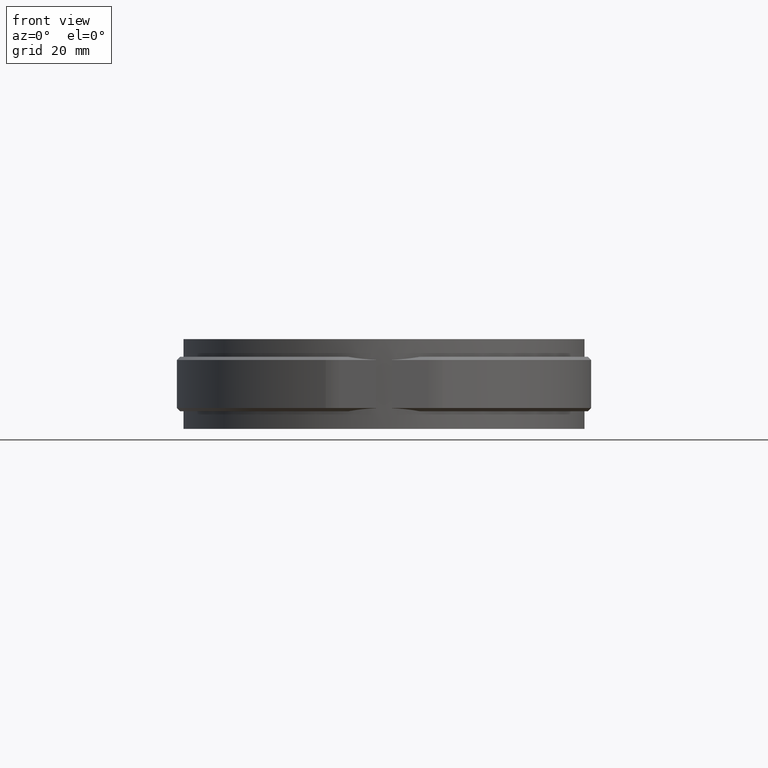
[diagram: clean part render]
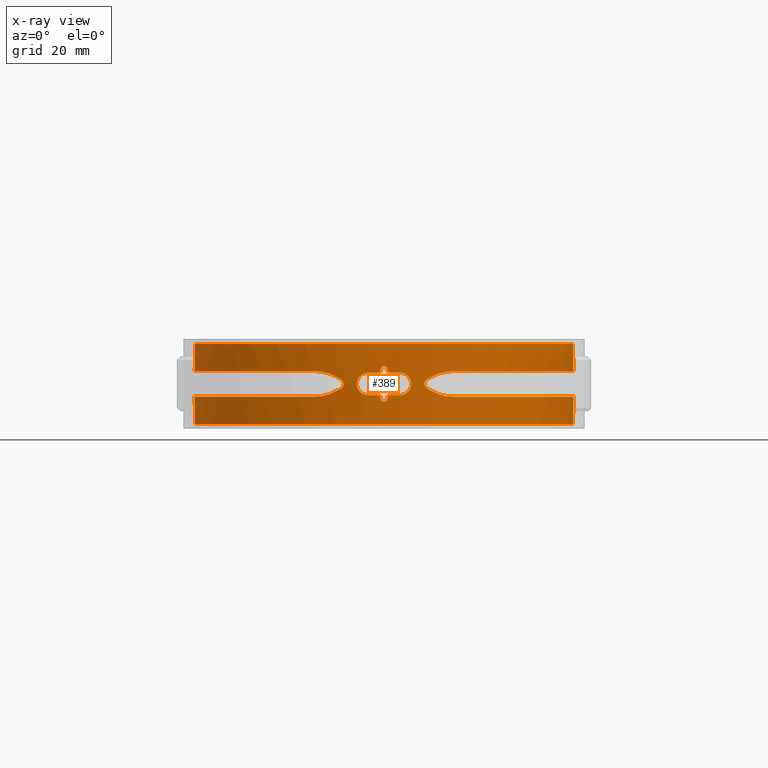
[diagram: x-ray — body ghosted, one internal face saturated and labeled with its STEP entity id]
A machine part, front view, then the same camera in x-ray: the body is ghosted and one INTERNAL B-rep face — a face not visible from any outside direction — is saturated and labeled: STEP entity #389.
In plain terms, the highlighted cylindrical surface (partial cylindrical patch) has radius 59.15 mm, axis along (0, 0, 1).
Its self-contained STEP definition (entity closure, byte-faithful):
#389 = ADVANCED_FACE( '', ( #749, #750 ), #751, .F. );
#749 = FACE_OUTER_BOUND( '', #1618, .T. );
#750 = FACE_BOUND( '', #1619, .T. );
#751 = CYLINDRICAL_SURFACE( '', #1620, 59.1500000000000 );
#1618 = EDGE_LOOP( '', ( #3155, #3156, #3157, #3158, #3159, #3160, #3161, #3162, #3163, #3164, #3165, #3166, #3167, #3168, #3169, #3170 ) );
#1619 = EDGE_LOOP( '', ( #3171, #3172, #3173, #3174, #3175, #3176, #3177, #3178, #3179, #3180, #3181, #3182, #3183, #3184, #3185, #3186 ) );
#1620 = AXIS2_PLACEMENT_3D( '', #3187, #3188, #3189 );
#3155 = ORIENTED_EDGE( '', *, *, #6119, .F. );
#3156 = ORIENTED_EDGE( '', *, *, #6120, .F. );
#3157 = ORIENTED_EDGE( '', *, *, #6090, .T. );
#3158 = ORIENTED_EDGE( '', *, *, #6084, .T. );
#3159 = ORIENTED_EDGE( '', *, *, #6121, .T. );
#3160 = ORIENTED_EDGE( '', *, *, #6122, .T. );
#3161 = ORIENTED_EDGE( '', *, *, #6113, .T. );
#3162 = ORIENTED_EDGE( '', *, *, #6123, .T. );
#3163 = ORIENTED_EDGE( '', *, *, #6124, .T. );
#3164 = ORIENTED_EDGE( '', *, *, #6082, .T. );
#3165 = ORIENTED_EDGE( '', *, *, #6033, .F. );
#3166 = ORIENTED_EDGE( '', *, *, #6125, .F. );
#3167 = ORIENTED_EDGE( '', *, *, #6126, .F. );
#3168 = ORIENTED_EDGE( '', *, *, #6078, .F. );
#3169 = ORIENTED_EDGE( '', *, *, #6099, .F. );
#3170 = ORIENTED_EDGE( '', *, *, #6076, .F. );
#3171 = ORIENTED_EDGE( '', *, *, #6127, .F. );
#3172 = ORIENTED_EDGE( '', *, *, #6128, .F. );
#3173 = ORIENTED_EDGE( '', *, *, #6129, .F. );
#3174 = ORIENTED_EDGE( '', *, *, #6107, .F. );
#3175 = ORIENTED_EDGE( '', *, *, #6110, .F. );
#3176 = ORIENTED_EDGE( '', *, *, #6117, .F. );
#3177 = ORIENTED_EDGE( '', *, *, #6130, .F. );
#3178 = ORIENTED_EDGE( '', *, *, #6114, .F. );
#3179 = ORIENTED_EDGE( '', *, *, #6131, .F. );
#3180 = ORIENTED_EDGE( '', *, *, #6132, .F. );
#3181 = ORIENTED_EDGE( '', *, *, #6133, .F. );
#3182 = ORIENTED_EDGE( '', *, *, #6134, .F. );
#3183 = ORIENTED_EDGE( '', *, *, #6135, .F. );
#3184 = ORIENTED_EDGE( '', *, *, #6136, .F. );
#3185 = ORIENTED_EDGE( '', *, *, #6094, .F. );
#3186 = ORIENTED_EDGE( '', *, *, #6103, .F. );
#3187 = CARTESIAN_POINT( '', ( -3.46944695195361E-015, 0.000000000000000, -12.5000000000000 ) );
#3188 = DIRECTION( '', ( 0.000000000000000, 0.000000000000000, 1.00000000000000 ) );
#3189 = DIRECTION( '', ( -1.00000000000000, 6.16283340149655E-017, 0.000000000000000 ) );
#6033 = EDGE_CURVE( '', #6943, #6945, #6946, .T. );
#6076 = EDGE_CURVE( '', #7023, #7026, #7027, .T. );
#6078 = EDGE_CURVE( '', #7028, #7024, #7030, .T. );
#6082 = EDGE_CURVE( '', #7036, #6945, #7037, .T. );
#6084 = EDGE_CURVE( '', #7040, #7038, #7041, .T. );
#6090 = EDGE_CURVE( '', #7049, #7040, #7050, .T. );
#6094 = EDGE_CURVE( '', #7055, #7056, #7057, .T. );
#6099 = EDGE_CURVE( '', #7026, #7028, #7063, .T. );
#6103 = EDGE_CURVE( '', #7068, #7055, #7069, .T. );
#6107 = EDGE_CURVE( '', #7074, #7075, #7076, .T. );
#6110 = EDGE_CURVE( '', #7079, #7074, #7080, .T. );
#6113 = EDGE_CURVE( '', #7082, #7083, #7085, .T. );
#6114 = EDGE_CURVE( '', #7086, #7087, #7088, .F. );
#6117 = EDGE_CURVE( '', #7091, #7079, #7092, .T. );
#6119 = EDGE_CURVE( '', #7094, #7023, #7095, .T. );
#6120 = EDGE_CURVE( '', #7049, #7094, #7096, .T. );
#6121 = EDGE_CURVE( '', #7038, #7097, #7098, .T. );
#6122 = EDGE_CURVE( '', #7097, #7082, #7099, .T. );
#6123 = EDGE_CURVE( '', #7083, #7100, #7101, .T. );
#6124 = EDGE_CURVE( '', #7100, #7036, #7102, .T. );
#6125 = EDGE_CURVE( '', #7103, #6943, #7104, .T. );
#6126 = EDGE_CURVE( '', #7024, #7103, #7105, .T. );
#6127 = EDGE_CURVE( '', #7106, #7068, #7107, .T. );
#6128 = EDGE_CURVE( '', #7108, #7106, #7109, .T. );
#6129 = EDGE_CURVE( '', #7075, #7108, #7110, .T. );
#6130 = EDGE_CURVE( '', #7087, #7091, #7111, .T. );
#6131 = EDGE_CURVE( '', #7112, #7086, #7113, .T. );
#6132 = EDGE_CURVE( '', #7114, #7112, #7115, .T. );
#6133 = EDGE_CURVE( '', #7116, #7114, #7117, .T. );
#6134 = EDGE_CURVE( '', #7118, #7116, #7119, .T. );
#6135 = EDGE_CURVE( '', #7120, #7118, #7121, .T. );
#6136 = EDGE_CURVE( '', #7056, #7120, #7122, .T. );
#6943 = VERTEX_POINT( '', #8446 );
#6945 = VERTEX_POINT( '', #8448 );
#6946 = CIRCLE( '', #8449, 59.1500000000000 );
#7023 = VERTEX_POINT( '', #8974 );
#7024 = VERTEX_POINT( '', #8975 );
#7026 = VERTEX_POINT( '', #8990 );
#7027 = B_SPLINE_CURVE_WITH_KNOTS( '', 3, ( #8991, #8992, #8993, #8994, #8995, #8996, #8997, #8998 ), .UNSPECIFIED., .F., .F., ( 4, 2, 2, 4 ), ( 5.93113093266774E-017, 0.00237748280261318, 0.00356622420391974, 0.00475496560522630 ), .UNSPECIFIED. );
#7028 = VERTEX_POINT( '', #8999 );
#7030 = B_SPLINE_CURVE_WITH_KNOTS( '', 3, ( #9010, #9011, #9012, #9013, #9014, #9015 ), .UNSPECIFIED., .F., .F., ( 4, 2, 4 ), ( 1.23390560447534E-015, 0.00237200723680634, 0.00474401447361144 ), .UNSPECIFIED. );
#7036 = VERTEX_POINT( '', #9037 );
#7037 = LINE( '', #9038, #9039 );
#7038 = VERTEX_POINT( '', #9040 );
#7040 = VERTEX_POINT( '', #9075 );
#7041 = LINE( '', #9076, #9077 );
#7049 = VERTEX_POINT( '', #9102 );
#7050 = CIRCLE( '', #9103, 59.1500000000000 );
#7055 = VERTEX_POINT( '', #9110 );
#7056 = VERTEX_POINT( '', #9111 );
#7057 = ELLIPSE( '', #9112, 269.461386027890, 59.1500000000000 );
#7063 = B_SPLINE_CURVE_WITH_KNOTS( '', 3, ( #9142, #9143, #9144, #9145, #9146, #9147, #9148, #9149, #9150, #9151, #9152, #9153, #9154, #9155, #9156, #9157, #9158, #9159, #9160, #9161, #9162, #9163, #9164, #9165, #9166, #9167, #9168, #9169, #9170, #9171, #9172, #9173 ), .UNSPECIFIED., .F., .F., ( 4, 2, 2, 2, 2, 2, 2, 2, 2, 2, 2, 2, 2, 2, 2, 4 ), ( 8.67361737988404E-019, 0.00156076088553258, 0.00312152177106516, 0.00390190221383146, 0.00468228265659775, 0.00546266309936404, 0.00585285332074718, 0.00624304354213033, 0.00663323376351348, 0.00702342398489662, 0.00741361420627977, 0.00780380442766291, 0.00858418487042921, 0.00936456531319550, 0.0109253261987281, 0.0124860870842607 ), .UNSPECIFIED. );
#7068 = VERTEX_POINT( '', #9183 );
#7069 = B_SPLINE_CURVE_WITH_KNOTS( '', 3, ( #9184, #9185, #9186, #9187, #9188, #9189 ), .UNSPECIFIED., .F., .F., ( 4, 2, 4 ), ( 1.30688418460503E-016, 0.000335830371839508, 0.000671660743678884 ), .UNSPECIFIED. );
#7074 = VERTEX_POINT( '', #9195 );
#7075 = VERTEX_POINT( '', #9196 );
#7076 = B_SPLINE_CURVE_WITH_KNOTS( '', 3, ( #9197, #9198, #9199, #9200, #9201, #9202 ), .UNSPECIFIED., .F., .F., ( 4, 2, 4 ), ( 0.000000000000000, 0.000335831563740138, 0.000671663127480277 ), .UNSPECIFIED. );
#7079 = VERTEX_POINT( '', #9207 );
#7080 = ELLIPSE( '', #9208, 269.461248569472, 59.1500000000000 );
#7082 = VERTEX_POINT( '', #9211 );
#7083 = VERTEX_POINT( '', #9212 );
#7085 = B_SPLINE_CURVE_WITH_KNOTS( '', 3, ( #9223, #9224, #9225, #9226, #9227, #9228, #9229, #9230, #9231, #9232, #9233, #9234, #9235, #9236, #9237, #9238, #9239, #9240, #9241, #9242, #9243, #9244, #9245, #9246, #9247, #9248, #9249, #9250, #9251, #9252, #9253, #9254 ), .UNSPECIFIED., .F., .F., ( 4, 2, 2, 2, 2, 2, 2, 2, 2, 2, 2, 2, 2, 2, 2, 4 ), ( 0.000000000000000, 0.00156045355342946, 0.00312090710685891, 0.00390113388357364, 0.00468136066028836, 0.00546158743700308, 0.00585170082536045, 0.00624181421371781, 0.00663192760207518, 0.00702204099043254, 0.00741215437878991, 0.00780226776714727, 0.00858249454386201, 0.00936272132057673, 0.0109231748740062, 0.0124836284274357 ), .UNSPECIFIED. );
#7086 = VERTEX_POINT( '', #9255 );
#7087 = VERTEX_POINT( '', #9256 );
#7088 = B_SPLINE_CURVE_WITH_KNOTS( '', 3, ( #9257, #9258, #9259, #9260, #9261, #9262 ), .UNSPECIFIED., .F., .F., ( 4, 2, 4 ), ( 0.00245575790838114, 0.00279123418082647, 0.00312671045327179 ), .UNSPECIFIED. );
#7091 = VERTEX_POINT( '', #9267 );
#7092 = B_SPLINE_CURVE_WITH_KNOTS( '', 3, ( #9268, #9269, #9270, #9271, #9272, #9273, #9274, #9275, #9276, #9277 ), .UNSPECIFIED., .F., .F., ( 4, 2, 2, 2, 4 ), ( 8.94056015336375E-019, 0.000671559393518300, 0.00134311878703660, 0.00201467818055490, 0.00268623757407320 ), .UNSPECIFIED. );
#7094 = VERTEX_POINT( '', #9280 );
#7095 = B_SPLINE_CURVE_WITH_KNOTS( '', 3, ( #9281, #9282, #9283, #9284, #9285, #9286, #9287, #9288, #9289, #9290, #9291, #9292, #9293, #9294, #9295, #9296, #9297, #9298, #9299, #9300, #9301, #9302, #9303, #9304, #9305, #9306, #9307, #9308, #9309, #9310, #9311, #9312, #9313, #9314, #9315, #9316, #9317, #9318, #9319, #9320, #9321, #9322, #9323, #9324, #9325, #9326, #9327, #9328, #9329, #9330, #9331, #9332, #9333, #9334, #9335, #9336, #9337, #9338, #9339, #9340 ), .UNSPECIFIED., .F., .F., ( 4, 2, 2, 2, 2, 2, 2, 2, 2, 2, 2, 2, 2, 2, 2, 2, 2, 2, 2, 2, 2, 2, 2, 2, 2, 2, 2, 2, 2, 4 ), ( 3.46944695195361E-018, 0.00984939593122422, 0.0147740938968363, 0.0196987918624484, 0.0295481877936726, 0.0320105367764787, 0.0344728857592847, 0.0393975837248969, 0.0492469796561211, 0.0517093286389272, 0.0541716776217332, 0.0590963755873453, 0.0689457715185695, 0.0714081205013756, 0.0738704694841816, 0.0787951674497937, 0.0886445633810179, 0.0911069123638240, 0.0935692613466301, 0.0984939593122422, 0.108343355243466, 0.110805704226272, 0.113268053209078, 0.118192751174691, 0.128042147105915, 0.132966845071527, 0.137891543037139, 0.147740938968363, 0.152665636933975, 0.157590334899587 ), .UNSPECIFIED. );
#7096 = LINE( '', #9341, #9342 );
#7097 = VERTEX_POINT( '', #9343 );
#7098 = B_SPLINE_CURVE_WITH_KNOTS( '', 3, ( #9344, #9345, #9346, #9347, #9348, #9349, #9350, #9351, #9352, #9353, #9354, #9355, #9356, #9357, #9358, #9359, #9360, #9361, #9362, #9363, #9364, #9365, #9366, #9367, #9368, #9369, #9370, #9371, #9372, #9373, #9374, #9375, #9376, #9377, #9378, #9379, #9380, #9381, #9382, #9383, #9384, #9385, #9386, #9387, #9388, #9389, #9390, #9391, #9392, #9393, #9394, #9395, #9396, #9397, #9398, #9399, #9400, #9401, #9402, #9403 ), .UNSPECIFIED., .F., .F., ( 4, 2, 2, 2, 2, 2, 2, 2, 2, 2, 2, 2, 2, 2, 2, 2, 2, 2, 2, 2, 2, 2, 2, 2, 2, 2, 2, 2, 2, 4 ), ( 7.33164413173482E-017, 0.00984936212114612, 0.0147740431817191, 0.0196987242422922, 0.0295480863634382, 0.0320104268937247, 0.0344727674240113, 0.0393974484845843, 0.0492468106057304, 0.0517091511360169, 0.0541714916663034, 0.0590961727268764, 0.0689455348480224, 0.0714078753783089, 0.0738702159085954, 0.0787948969691684, 0.0886442590903145, 0.0911065996206010, 0.0935689401508875, 0.0984936212114605, 0.108342983332607, 0.110805323862893, 0.113267664393180, 0.118192345453753, 0.128041707574899, 0.132966388635472, 0.137891069696045, 0.147740431817191, 0.152665112877764, 0.157589793938337 ), .UNSPECIFIED. );
#7099 = B_SPLINE_CURVE_WITH_KNOTS( '', 3, ( #9404, #9405, #9406, #9407, #9408, #9409 ), .UNSPECIFIED., .F., .F., ( 4, 2, 4 ), ( 1.55400630446897E-017, 0.00237845277999040, 0.00475690555998079 ), .UNSPECIFIED. );
#7100 = VERTEX_POINT( '', #9410 );
#7101 = B_SPLINE_CURVE_WITH_KNOTS( '', 3, ( #9411, #9412, #9413, #9414, #9415, #9416 ), .UNSPECIFIED., .F., .F., ( 4, 2, 4 ), ( 1.20804653247504E-015, 0.00237274524341268, 0.00474549048682415 ), .UNSPECIFIED. );
#7102 = B_SPLINE_CURVE_WITH_KNOTS( '', 3, ( #9417, #9418, #9419, #9420, #9421, #9422, #9423, #9424, #9425, #9426, #9427, #9428, #9429, #9430, #9431, #9432, #9433, #9434, #9435, #9436, #9437, #9438, #9439, #9440, #9441, #9442, #9443, #9444, #9445, #9446, #9447, #9448, #9449, #9450, #9451, #9452, #9453, #9454, #9455, #9456, #9457, #9458, #9459, #9460, #9461, #9462, #9463, #9464, #9465, #9466, #9467, #9468, #9469, #9470, #9471, #9472, #9473, #9474, #9475, #9476 ), .UNSPECIFIED., .F., .F., ( 4, 2, 2, 2, 2, 2, 2, 2, 2, 2, 2, 2, 2, 2, 2, 2, 2, 2, 2, 2, 2, 2, 2, 2, 2, 2, 2, 2, 2, 4 ), ( 1.86835436258807E-017, 0.00984936456245152, 0.0147740468436773, 0.0196987291249030, 0.0295480936873545, 0.0320104348279674, 0.0344727759685803, 0.0393974582498060, 0.0492468228122576, 0.0517091639528705, 0.0541715050934833, 0.0590961873747091, 0.0689455519371606, 0.0714078930777735, 0.0738702342183864, 0.0787949164996122, 0.0886442810620637, 0.0911066222026766, 0.0935689633432894, 0.0984936456245152, 0.108343010186967, 0.110805351327580, 0.113267692468192, 0.118192374749418, 0.128041739311870, 0.132966421593095, 0.137891103874321, 0.147740468436772, 0.152665150717998, 0.157589832999224 ), .UNSPECIFIED. );
#7103 = VERTEX_POINT( '', #9477 );
#7104 = LINE( '', #9478, #9479 );
#7105 = B_SPLINE_CURVE_WITH_KNOTS( '', 3, ( #9480, #9481, #9482, #9483, #9484, #9485, #9486, #9487, #9488, #9489, #9490, #9491, #9492, #9493, #9494, #9495, #9496, #9497, #9498, #9499, #9500, #9501, #9502, #9503, #9504, #9505, #9506, #9507, #9508, #9509, #9510, #9511, #9512, #9513, #9514, #9515, #9516, #9517, #9518, #9519, #9520, #9521, #9522, #9523, #9524, #9525, #9526, #9527, #9528, #9529, #9530, #9531, #9532, #9533, #9534, #9535, #9536, #9537, #9538, #9539 ), .UNSPECIFIED., .F., .F., ( 4, 2, 2, 2, 2, 2, 2, 2, 2, 2, 2, 2, 2, 2, 2, 2, 2, 2, 2, 2, 2, 2, 2, 2, 2, 2, 2, 2, 2, 4 ), ( 1.86835436258807E-017, 0.00984936456245153, 0.0147740468436773, 0.0196987291249031, 0.0295480936873546, 0.0320104348279675, 0.0344727759685803, 0.0393974582498061, 0.0492468228122577, 0.0517091639528705, 0.0541715050934834, 0.0590961873747092, 0.0689455519371606, 0.0714078930777735, 0.0738702342183864, 0.0787949164996121, 0.0886442810620636, 0.0911066222026765, 0.0935689633432893, 0.0984936456245151, 0.108343010186967, 0.110805351327579, 0.113267692468192, 0.118192374749418, 0.128041739311869, 0.132966421593095, 0.137891103874321, 0.147740468436772, 0.152665150717998, 0.157589832999224 ), .UNSPECIFIED. );
#7106 = VERTEX_POINT( '', #9540 );
#7107 = CIRCLE( '', #9541, 59.1500000000000 );
#7108 = VERTEX_POINT( '', #9542 );
#7109 = B_SPLINE_CURVE_WITH_KNOTS( '', 3, ( #9543, #9544, #9545, #9546, #9547, #9548, #9549, #9550, #9551, #9552, #9553, #9554, #9555, #9556, #9557, #9558, #9559, #9560, #9561, #9562, #9563, #9564, #9565, #9566, #9567, #9568, #9569, #9570, #9571, #9572, #9573, #9574, #9575, #9576 ), .UNSPECIFIED., .F., .F., ( 4, 2, 2, 2, 2, 2, 2, 2, 2, 2, 2, 2, 2, 2, 2, 2, 4 ), ( 8.67361737988404E-019, 0.000685840484445832, 0.00137168096889166, 0.00205752145333749, 0.00274336193778333, 0.00342920242222916, 0.00411504290667499, 0.00480088339112082, 0.00548672387556665, 0.00617256436001248, 0.00685840484445831, 0.00754424532890414, 0.00823008581334997, 0.00891592629779580, 0.00960176678224163, 0.0102876072666875, 0.0109734477511333 ), .UNSPECIFIED. );
#7110 = CIRCLE( '', #9577, 59.1500000000000 );
#7111 = ELLIPSE( '', #9578, 269.461386027948, 59.1500000000000 );
#7112 = VERTEX_POINT( '', #9579 );
#7113 = CIRCLE( '', #9580, 59.1500000000000 );
#7114 = VERTEX_POINT( '', #9581 );
#7115 = B_SPLINE_CURVE_WITH_KNOTS( '', 3, ( #9582, #9583, #9584, #9585, #9586, #9587, #9588, #9589, #9590, #9591, #9592, #9593, #9594, #9595, #9596, #9597, #9598, #9599, #9600, #9601, #9602, #9603, #9604, #9605, #9606, #9607, #9608, #9609, #9610, #9611, #9612, #9613, #9614, #9615 ), .UNSPECIFIED., .F., .F., ( 4, 2, 2, 2, 2, 2, 2, 2, 2, 2, 2, 2, 2, 2, 2, 2, 4 ), ( 0.000000000000000, 0.000685840484445826, 0.00137168096889165, 0.00205752145333748, 0.00274336193778330, 0.00342920242222913, 0.00411504290667495, 0.00480088339112078, 0.00548672387556660, 0.00617256436001243, 0.00685840484445825, 0.00754424532890408, 0.00823008581334990, 0.00891592629779573, 0.00960176678224155, 0.0102876072666874, 0.0109734477511332 ), .UNSPECIFIED. );
#7116 = VERTEX_POINT( '', #9616 );
#7117 = CIRCLE( '', #9617, 59.1500000000000 );
#7118 = VERTEX_POINT( '', #9618 );
#7119 = B_SPLINE_CURVE_WITH_KNOTS( '', 3, ( #9619, #9620, #9621, #9622, #9623, #9624 ), .UNSPECIFIED., .F., .F., ( 4, 2, 4 ), ( 4.84869951806108E-019, 0.000335831563740084, 0.000671663127480168 ), .UNSPECIFIED. );
#7120 = VERTEX_POINT( '', #9625 );
#7121 = ELLIPSE( '', #9626, 269.461248569451, 59.1500000000000 );
#7122 = B_SPLINE_CURVE_WITH_KNOTS( '', 3, ( #9627, #9628, #9629, #9630, #9631, #9632, #9633, #9634, #9635, #9636 ), .UNSPECIFIED., .F., .F., ( 4, 2, 2, 2, 4 ), ( 1.08420217248550E-019, 0.000671559393518301, 0.00134311878703660, 0.00201467818055490, 0.00268623757407320 ), .UNSPECIFIED. );
#8446 = CARTESIAN_POINT( '', ( 6.66210780370072, 58.7736235024851, 12.5000000000000 ) );
#8448 = CARTESIAN_POINT( '', ( -6.66210780370071, 58.7736235024851, 12.5000000000000 ) );
#8449 = AXIS2_PLACEMENT_3D( '', #12344, #12345, #12346 );
#8974 = CARTESIAN_POINT( '', ( 21.8279984993631, -54.9751086279388, -3.99691017875446 ) );
#8975 = CARTESIAN_POINT( '', ( 21.8284965915782, -54.9748970021398, 3.99692307605801 ) );
#8990 = CARTESIAN_POINT( '', ( 17.4081203623742, -56.5304934732379, -3.32992694096911 ) );
#8991 = CARTESIAN_POINT( '', ( 21.8279935139120, -54.9750961723271, -3.99692015817492 ) );
#8992 = CARTESIAN_POINT( '', ( 21.0910786988036, -55.2676899634152, -3.99397227520532 ) );
#8993 = CARTESIAN_POINT( '', ( 20.3486368721468, -55.5452239734512, -3.94602397344714 ) );
#8994 = CARTESIAN_POINT( '', ( 19.2375323801158, -55.9356233104435, -3.79055969223092 ) );
#8995 = CARTESIAN_POINT( '', ( 18.8668528086487, -56.0616970810468, -3.72435534044378 ) );
#8996 = CARTESIAN_POINT( '', ( 18.1323068180800, -56.3035652864476, -3.55673175937291 ) );
#8997 = CARTESIAN_POINT( '', ( 17.7679216514405, -56.4195467927454, -3.45541627712203 ) );
#8998 = CARTESIAN_POINT( '', ( 17.4080353065389, -56.5303706583141, -3.33006255408964 ) );
#8999 = CARTESIAN_POINT( '', ( 17.4082579707866, -56.5305399612363, 3.32987415134086 ) );
#9010 = CARTESIAN_POINT( '', ( 17.4081215671861, -56.5303440950259, 3.33009259978521 ) );
#9011 = CARTESIAN_POINT( '', ( 18.1281727971035, -56.3086093869560, 3.58089430702263 ) );
#9012 = CARTESIAN_POINT( '', ( 18.8662055608297, -56.0660882141807, 3.73858652882288 ) );
#9013 = CARTESIAN_POINT( '', ( 20.3489198681760, -55.5451295803900, 3.94608116441817 ) );
#9014 = CARTESIAN_POINT( '', ( 21.0914283081865, -55.2675589527682, 3.99399494904851 ) );
#9015 = CARTESIAN_POINT( '', ( 21.8284963955495, -54.9748964993067, 3.99692216259803 ) );
#9037 = CARTESIAN_POINT( '', ( -6.66210780370063, 58.7736235024851, 3.99498390197390 ) );
#9038 = CARTESIAN_POINT( '', ( -6.66210780370070, 58.7736235024851, -12.5000000000000 ) );
#9039 = VECTOR( '', #12398, 1000.00000000000 );
#9040 = CARTESIAN_POINT( '', ( -6.66210780370063, 58.7736235024851, -3.99498390196977 ) );
#9075 = CARTESIAN_POINT( '', ( -6.66210780370071, 58.7736235024851, -12.5000000000000 ) );
#9076 = CARTESIAN_POINT( '', ( -6.66210780370070, 58.7736235024851, -12.5000000000000 ) );
#9077 = VECTOR( '', #12399, 1000.00000000000 );
#9102 = CARTESIAN_POINT( '', ( 6.66210780370072, 58.7736235024851, -12.5000000000000 ) );
#9103 = AXIS2_PLACEMENT_3D( '', #12408, #12409, #12410 );
#9110 = CARTESIAN_POINT( '', ( 1.16219512100909, -59.1385813365581, -3.89024390662627 ) );
#9111 = CARTESIAN_POINT( '', ( 0.975609999999952, -59.1419536803435, -4.71951199999997 ) );
#9112 = AXIS2_PLACEMENT_3D( '', #12416, #12417, #12418 );
#9142 = CARTESIAN_POINT( '', ( 17.4080364600123, -56.5303703031113, -3.33006050941171 ) );
#9143 = CARTESIAN_POINT( '', ( 16.9331556469804, -56.6766057242326, -3.16661032535578 ) );
#9144 = CARTESIAN_POINT( '', ( 16.4624468556709, -56.8149911000181, -2.98941380379606 ) );
#9145 = CARTESIAN_POINT( '', ( 15.5332844206586, -57.0760233835350, -2.59901002744413 ) );
#9146 = CARTESIAN_POINT( '', ( 15.0745033758721, -57.1987339620630, -2.38655190281725 ) );
#9147 = CARTESIAN_POINT( '', ( 14.4032230669420, -57.3700531201333, -2.02356937538774 ) );
#9148 = CARTESIAN_POINT( '', ( 14.1823230220194, -57.4250268359634, -1.89509032511891 ) );
#9149 = CARTESIAN_POINT( '', ( 13.7499613052613, -57.5300839345454, -1.61471323528758 ) );
#9150 = CARTESIAN_POINT( '', ( 13.5399796405460, -57.5797903331840, -1.46418352007179 ) );
#9151 = CARTESIAN_POINT( '', ( 13.1463955982942, -57.6709249644305, -1.12778117000452 ) );
#9152 = CARTESIAN_POINT( '', ( 12.9620752826553, -57.7124737578494, -0.942914370501849 ) );
#9153 = CARTESIAN_POINT( '', ( 12.7423081132741, -57.7612475165427, -0.619536137694859 ) );
#9154 = CARTESIAN_POINT( '', ( 12.6786876092909, -57.7752149462564, -0.502808546474984 ) );
#9155 = CARTESIAN_POINT( '', ( 12.5895447355132, -57.7947051634718, -0.256122539293904 ) );
#9156 = CARTESIAN_POINT( '', ( 12.5643038630059, -57.8001796640064, -0.124112990278658 ) );
#9157 = CARTESIAN_POINT( '', ( 12.5660001791780, -57.7998109015095, 0.137497969023479 ) );
#9158 = CARTESIAN_POINT( '', ( 12.5930047332769, -57.7939525737100, 0.269739004217219 ) );
#9159 = CARTESIAN_POINT( '', ( 12.6851098449452, -57.7738064396509, 0.516072685604149 ) );
#9160 = CARTESIAN_POINT( '', ( 12.7496806396757, -57.7596213454950, 0.631923255098408 ) );
#9161 = CARTESIAN_POINT( '', ( 12.8972721010345, -57.7268445936599, 0.845844665495442 ) );
#9162 = CARTESIAN_POINT( '', ( 12.9817243553670, -57.7079352055748, 0.946188425437589 ) );
#9163 = CARTESIAN_POINT( '', ( 13.1610578764358, -57.6673001665819, 1.13418256269882 ) );
#9164 = CARTESIAN_POINT( '', ( 13.2555317507119, -57.6456713206343, 1.22153647481473 ) );
#9165 = CARTESIAN_POINT( '', ( 13.5484295374367, -57.5777972231661, 1.47037889470851 ) );
#9166 = CARTESIAN_POINT( '', ( 13.7561306939751, -57.5286022612104, 1.61891793418127 ) );
#9167 = CARTESIAN_POINT( '', ( 14.1850479653383, -57.4243469620624, 1.89664912782076 ) );
#9168 = CARTESIAN_POINT( '', ( 14.4068358515791, -57.3691462218074, 2.02562417623318 ) );
#9169 = CARTESIAN_POINT( '', ( 15.0782798236534, -57.1977395309772, 2.38838893002002 ) );
#9170 = CARTESIAN_POINT( '', ( 15.5367199619035, -57.0750828222523, 2.60053753861467 ) );
#9171 = CARTESIAN_POINT( '', ( 16.4646241604309, -56.8143546790538, 2.99024411783318 ) );
#9172 = CARTESIAN_POINT( '', ( 16.9344069690206, -56.6762211853141, 3.16704287013537 ) );
#9173 = CARTESIAN_POINT( '', ( 17.4081231030228, -56.5303436220761, 3.33009033107908 ) );
#9183 = CARTESIAN_POINT( '', ( 1.65000000000012, -59.1269819963779, -3.49999999999999 ) );
#9184 = CARTESIAN_POINT( '', ( 1.65000000000025, -59.1269819963779, -3.50000000000001 ) );
#9185 = CARTESIAN_POINT( '', ( 1.53648944142174, -59.1301496267107, -3.49999999999995 ) );
#9186 = CARTESIAN_POINT( '', ( 1.42634201253609, -59.1328666062052, -3.53862499593190 ) );
#9187 = CARTESIAN_POINT( '', ( 1.24902216936530, -59.1368777348316, -3.68045881474412 ) );
#9188 = CARTESIAN_POINT( '', ( 1.18712176031317, -59.1380914766743, -3.77945883861210 ) );
#9189 = CARTESIAN_POINT( '', ( 1.16219512100909, -59.1385813365581, -3.89024390662627 ) );
#9195 = CARTESIAN_POINT( '', ( 1.16219499999994, -59.1385813389362, 3.89024400000002 ) );
#9196 = CARTESIAN_POINT( '', ( 1.65000000000001, -59.1269819963779, 3.50000000000001 ) );
#9197 = CARTESIAN_POINT( '', ( 1.16219499999994, -59.1385813389362, 3.89024400000002 ) );
#9198 = CARTESIAN_POINT( '', ( 1.18712164582008, -59.1380914789754, 3.77945890524584 ) );
#9199 = CARTESIAN_POINT( '', ( 1.24902105413328, -59.1368777592494, 3.68045984249938 ) );
#9200 = CARTESIAN_POINT( '', ( 1.42634204819292, -59.1328666062083, 3.53862475963868 ) );
#9201 = CARTESIAN_POINT( '', ( 1.53648941376295, -59.1301496274825, 3.49999999951282 ) );
#9202 = CARTESIAN_POINT( '', ( 1.65000000000001, -59.1269819963779, 3.50000000000001 ) );
#9207 = CARTESIAN_POINT( '', ( 0.975609757981782, -59.1419536843359, 4.71951218674747 ) );
#9208 = AXIS2_PLACEMENT_3D( '', #12434, #12435, #12436 );
#9211 = CARTESIAN_POINT( '', ( -17.4067715967833, -56.5307603373182, -3.32962587617527 ) );
#9212 = CARTESIAN_POINT( '', ( -17.4067715967549, -56.5307603365689, 3.32962587701698 ) );
#9223 = CARTESIAN_POINT( '', ( -17.4067716734517, -56.5307597676550, -3.32962514392271 ) );
#9224 = CARTESIAN_POINT( '', ( -16.9319929128016, -56.6769521329444, -3.16618301605591 ) );
#9225 = CARTESIAN_POINT( '', ( -16.4613856419211, -56.8152976758342, -2.98899678357386 ) );
#9226 = CARTESIAN_POINT( '', ( -15.5324241649438, -57.0762565941913, -2.59861964904489 ) );
#9227 = CARTESIAN_POINT( '', ( -15.0737427589868, -57.1989335768923, -2.38617744857620 ) );
#9228 = CARTESIAN_POINT( '', ( -14.4026112147783, -57.3702065184570, -2.02322006897071 ) );
#9229 = CARTESIAN_POINT( '', ( -14.1817606363080, -57.4251655267382, -1.89474961974345 ) );
#9230 = CARTESIAN_POINT( '', ( -13.7494979885297, -57.5301944684896, -1.61438873814042 ) );
#9231 = CARTESIAN_POINT( '', ( -13.5395897368339, -57.5798817964468, -1.46388378430808 ) );
#9232 = CARTESIAN_POINT( '', ( -13.1461283972399, -57.6709856522138, -1.12751921216875 ) );
#9233 = CARTESIAN_POINT( '', ( -12.9618591913809, -57.7125221515618, -0.942664825396334 ) );
#9234 = CARTESIAN_POINT( '', ( -12.7421704064242, -57.7612778600991, -0.619299238273359 ) );
#9235 = CARTESIAN_POINT( '', ( -12.6785924864311, -57.7752357974507, -0.502603758851260 ) );
#9236 = CARTESIAN_POINT( '', ( -12.5895072530321, -57.7947133050582, -0.255960279726874 ) );
#9237 = CARTESIAN_POINT( '', ( -12.5642938827558, -57.8001818336235, -0.123994230005964 ) );
#9238 = CARTESIAN_POINT( '', ( -12.5660112674111, -57.7998084910279, 0.137549008446190 ) );
#9239 = CARTESIAN_POINT( '', ( -12.5930123429505, -57.7939509052084, 0.269755382663806 ) );
#9240 = CARTESIAN_POINT( '', ( -12.6850925598799, -57.7738102244488, 0.516030430055841 ) );
#9241 = CARTESIAN_POINT( '', ( -12.7496407321643, -57.7596301220063, 0.631852523131550 ) );
#9242 = CARTESIAN_POINT( '', ( -12.8971836852599, -57.7268643147963, 0.845729392446688 ) );
#9243 = CARTESIAN_POINT( '', ( -12.9816100984066, -57.7079608596862, 0.946055876352115 ) );
#9244 = CARTESIAN_POINT( '', ( -13.1608843136227, -57.6673397289450, 1.13401337173943 ) );
#9245 = CARTESIAN_POINT( '', ( -13.2553280803361, -57.6457181000379, 1.22135180644165 ) );
#9246 = CARTESIAN_POINT( '', ( -13.5481355185556, -57.5778661910667, 1.47015232304491 ) );
#9247 = CARTESIAN_POINT( '', ( -13.7557764115790, -57.5286867385882, 1.61866937359308 ) );
#9248 = CARTESIAN_POINT( '', ( -14.1845744571678, -57.4244636894506, 1.89636164306126 ) );
#9249 = CARTESIAN_POINT( '', ( -14.4063002921011, -57.3692804455880, 2.02531815174424 ) );
#9250 = CARTESIAN_POINT( '', ( -15.0775539802899, -57.1979298032223, 2.38803005734814 ) );
#9251 = CARTESIAN_POINT( '', ( -15.5358681622570, -57.0753135699333, 2.60015044267380 ) );
#9252 = CARTESIAN_POINT( '', ( -16.4635217346890, -56.8146730233719, 2.98981040511173 ) );
#9253 = CARTESIAN_POINT( '', ( -16.9331796263356, -56.6765867238926, 3.16659154105179 ) );
#9254 = CARTESIAN_POINT( '', ( -17.4067716738560, -56.5307597675304, 3.32962514406606 ) );
#9255 = CARTESIAN_POINT( '', ( -1.65000000000006, -59.1269819963779, 3.50000000000002 ) );
#9256 = CARTESIAN_POINT( '', ( -1.16219510886711, -59.1385813367968, 3.89024396051608 ) );
#9257 = CARTESIAN_POINT( '', ( -1.16219510888329, -59.1385813367964, 3.89024396051902 ) );
#9258 = CARTESIAN_POINT( '', ( -1.18676340266886, -59.1380985191463, 3.78105148298734 ) );
#9259 = CARTESIAN_POINT( '', ( -1.25006731207247, -59.1368536832242, 3.67972458165160 ) );
#9260 = CARTESIAN_POINT( '', ( -1.42474340260303, -59.1329031764255, 3.53980225576353 ) );
#9261 = CARTESIAN_POINT( '', ( -1.53660864228125, -59.1301463002866, 3.50000000000002 ) );
#9262 = CARTESIAN_POINT( '', ( -1.65000000000006, -59.1269819963779, 3.50000000000002 ) );
#9267 = CARTESIAN_POINT( '', ( -0.975610000000049, -59.1419536803435, 4.71951200000002 ) );
#9268 = CARTESIAN_POINT( '', ( -0.975610000000048, -59.1419536803435, 4.71951200000002 ) );
#9269 = CARTESIAN_POINT( '', ( -0.925764284690340, -59.1427759389144, 4.94104862037270 ) );
#9270 = CARTESIAN_POINT( '', ( -0.802007161698214, -59.1448284021954, 5.13901837800779 ) );
#9271 = CARTESIAN_POINT( '', ( -0.447387898343247, -59.1485738313357, 5.42271550540288 ) );
#9272 = CARTESIAN_POINT( '', ( -0.227076166617061, -59.1500000002807, 5.50000004274322 ) );
#9273 = CARTESIAN_POINT( '', ( 0.227076312840988, -59.1499999997193, 5.49999996412398 ) );
#9274 = CARTESIAN_POINT( '', ( 0.447393404152534, -59.1485737804524, 5.42271191798575 ) );
#9275 = CARTESIAN_POINT( '', ( 0.802006504533610, -59.1448284018678, 5.13901776646875 ) );
#9276 = CARTESIAN_POINT( '', ( 0.925764000183630, -59.1427759434036, 4.94104879794672 ) );
#9277 = CARTESIAN_POINT( '', ( 0.975609757981781, -59.1419536843359, 4.71951218674747 ) );
#9280 = CARTESIAN_POINT( '', ( 6.66210780370073, 58.7736235024851, -3.99498390196976 ) );
#9281 = CARTESIAN_POINT( '', ( 6.66210780370072, 58.7736235024851, -3.99498390196976 ) );
#9282 = CARTESIAN_POINT( '', ( 9.93625130227817, 58.4024927868268, -3.99286626078612 ) );
#9283 = CARTESIAN_POINT( '', ( 13.1563667831131, 57.7622994084507, -3.99072135901863 ) );
#9284 = CARTESIAN_POINT( '', ( 17.9055781564810, 56.3988071757992, -3.99135019771944 ) );
#9285 = CARTESIAN_POINT( '', ( 19.4611764328712, 55.8806251479744, -3.99209888393865 ) );
#9286 = CARTESIAN_POINT( '', ( 22.5103945591627, 54.7235213767407, -3.99407776678666 ) );
#9287 = CARTESIAN_POINT( '', ( 24.0054745036521, 54.0841728611962, -3.99530616724208 ) );
#9288 = CARTESIAN_POINT( '', ( 28.4031792627608, 51.9859033649360, -3.99775555644026 ) );
#9289 = CARTESIAN_POINT( '', ( 31.2188892206069, 50.3480348222997, -3.99583033575909 ) );
#9290 = CARTESIAN_POINT( '', ( 34.5878265899734, 47.9904268989835, -3.99359812324088 ) );
#9291 = CARTESIAN_POINT( '', ( 35.2530187787488, 47.5038864284243, -3.99318750369499 ) );
#9292 = CARTESIAN_POINT( '', ( 36.5559894699425, 46.5086464293781, -3.99254093631860 ) );
#9293 = CARTESIAN_POINT( '', ( 37.1952649520232, 45.9989166361907, -3.99230389298260 ) );
#9294 = CARTESIAN_POINT( '', ( 39.0769913000518, 44.4339230448246, -3.99192288862376 ) );
#9295 = CARTESIAN_POINT( '', ( 40.2834030899060, 43.3429155618016, -3.99213126275933 ) );
#9296 = CARTESIAN_POINT( '', ( 43.7603566079023, 39.9287774062074, -3.99389131428180 ) );
#9297 = CARTESIAN_POINT( '', ( 45.8896157129479, 37.4655221455796, -3.99693335534556 ) );
#9298 = CARTESIAN_POINT( '', ( 48.3070030095878, 34.1442665791324, -3.99691834143726 ) );
#9299 = CARTESIAN_POINT( '', ( 48.7784950961105, 33.4672104964929, -3.99668432770333 ) );
#9300 = CARTESIAN_POINT( '', ( 49.6880577556725, 32.1012878048030, -3.99598322754808 ) );
#9301 = CARTESIAN_POINT( '', ( 50.1272674375271, 31.4109210028349, -3.99551702391760 ) );
#9302 = CARTESIAN_POINT( '', ( 51.3988940671837, 29.3179430497643, -3.99404911386481 ) );
#9303 = CARTESIAN_POINT( '', ( 52.1853865724809, 27.8934914304935, -3.99300064415191 ) );
#9304 = CARTESIAN_POINT( '', ( 54.3638386334765, 23.5340453947567, -3.99102869062657 ) );
#9305 = CARTESIAN_POINT( '', ( 55.5760338534559, 20.5135595048166, -3.99164670839562 ) );
#9306 = CARTESIAN_POINT( '', ( 56.7815654466703, 16.5906607185454, -3.99398706415596 ) );
#9307 = CARTESIAN_POINT( '', ( 57.0074721658408, 15.7969978659297, -3.99450544396555 ) );
#9308 = CARTESIAN_POINT( '', ( 57.4240915054787, 14.2081222927487, -3.99549164869749 ) );
#9309 = CARTESIAN_POINT( '', ( 57.6152079211697, 13.4118456172431, -3.99595984314206 ) );
#9310 = CARTESIAN_POINT( '', ( 58.1378053592940, 11.0175875148042, -3.99701923180075 ) );
#9311 = CARTESIAN_POINT( '', ( 58.4186208569080, 9.41418726994906, -3.99705298196236 ) );
#9312 = CARTESIAN_POINT( '', ( 59.0616666360008, 4.58266006651656, -3.99504208262835 ) );
#9313 = CARTESIAN_POINT( '', ( 59.2258748002861, 1.33335390128600, -3.99221161481762 ) );
#9314 = CARTESIAN_POINT( '', ( 59.0910455666888, -2.76465323157111, -3.99154722130345 ) );
#9315 = CARTESIAN_POINT( '', ( 59.0467994151567, -3.58801116536138, -3.99153182974492 ) );
#9316 = CARTESIAN_POINT( '', ( 58.9242748729461, -5.22763579393321, -3.99174105209448 ) );
#9317 = CARTESIAN_POINT( '', ( 58.8461304667021, -6.04348068112223, -3.99196481224372 ) );
#9318 = CARTESIAN_POINT( '', ( 58.5619044945101, -8.47931368477093, -3.99292003734136 ) );
#9319 = CARTESIAN_POINT( '', ( 58.3061151390203, -10.0876201076743, -3.99395617716178 ) );
#9320 = CARTESIAN_POINT( '', ( 57.3434230982892, -14.8666369948428, -3.99689424264069 ) );
#9321 = CARTESIAN_POINT( '', ( 56.4425370641760, -17.9917603331761, -3.99709712010225 ) );
#9322 = CARTESIAN_POINT( '', ( 54.9843271453870, -21.8201186179640, -3.99483219771679 ) );
#9323 = CARTESIAN_POINT( '', ( 54.6754401186088, -22.5830904458915, -3.99434861379568 ) );
#9324 = CARTESIAN_POINT( '', ( 54.0260148744747, -24.0954236948416, -3.99346464021209 ) );
#9325 = CARTESIAN_POINT( '', ( 53.6866402513190, -24.8422299191052, -3.99306601644937 ) );
#9326 = CARTESIAN_POINT( '', ( 52.6253072518563, -27.0550633331477, -3.99213734148497 ) );
#9327 = CARTESIAN_POINT( '', ( 51.8602137726813, -28.4935525201472, -3.99189713452765 ) );
#9328 = CARTESIAN_POINT( '', ( 49.3957035924469, -32.7009816010704, -3.99256507573688 ) );
#9329 = CARTESIAN_POINT( '', ( 47.5282109312902, -35.3626195441434, -3.99521258422614 ) );
#9330 = CARTESIAN_POINT( '', ( 44.3827601783134, -39.1353280015970, -3.99707380349009 ) );
#9331 = CARTESIAN_POINT( '', ( 43.2720894034646, -40.3600039157281, -3.99700354169900 ) );
#9332 = CARTESIAN_POINT( '', ( 40.9730018538329, -42.6921158588424, -3.99545827394389 ) );
#9333 = CARTESIAN_POINT( '', ( 39.7812229479805, -43.8043374924389, -3.99424878817972 ) );
#9334 = CARTESIAN_POINT( '', ( 36.0818616643103, -46.9829169847003, -3.99131152275406 ) );
#9335 = CARTESIAN_POINT( '', ( 33.4510948845731, -48.8922604364850, -3.99065374747645 ) );
#9336 = CARTESIAN_POINT( '', ( 29.2534613037575, -51.4357278226041, -3.99277534466418 ) );
#9337 = CARTESIAN_POINT( '', ( 27.8075765838920, -52.2318645138824, -3.99391001222882 ) );
#9338 = CARTESIAN_POINT( '', ( 24.8613819799886, -53.6967473140663, -3.99599746118727 ) );
#9339 = CARTESIAN_POINT( '', ( 23.3592628869776, -54.3671020016683, -3.99694876305767 ) );
#9340 = CARTESIAN_POINT( '', ( 21.8279935482419, -54.9750961586963, -3.99691953918446 ) );
#9341 = CARTESIAN_POINT( '', ( 6.66210780370073, 58.7736235024851, -12.5000000000000 ) );
#9342 = VECTOR( '', #12441, 1000.00000000000 );
#9343 = CARTESIAN_POINT( '', ( -21.8284965557793, -54.9748969213661, -3.99692314191150 ) );
#9344 = CARTESIAN_POINT( '', ( -6.66210780370056, 58.7736235024851, -3.99498390196975 ) );
#9345 = CARTESIAN_POINT( '', ( -9.93624006310676, 58.4024940608094, -3.99286626805535 ) );
#9346 = CARTESIAN_POINT( '', ( -13.1563446731064, 57.7623037907568, -3.99072137010982 ) );
#9347 = CARTESIAN_POINT( '', ( -17.9055403035456, 56.3988190260347, -3.99135018569812 ) );
#9348 = CARTESIAN_POINT( '', ( -19.4611339553526, 55.8806397816071, -3.99209886110096 ) );
#9349 = CARTESIAN_POINT( '', ( -22.5103428330446, 54.7235424910404, -3.99407772848818 ) );
#9350 = CARTESIAN_POINT( '', ( -24.0054183488748, 54.0841976186294, -3.99530612432146 ) );
#9351 = CARTESIAN_POINT( '', ( -28.4031104199481, 51.9859402828692, -3.99775554138432 ) );
#9352 = CARTESIAN_POINT( '', ( -31.2188127066884, 50.3480814687854, -3.99583039566000 ) );
#9353 = CARTESIAN_POINT( '', ( -34.5877416372682, 47.9904880740315, -3.99359817722861 ) );
#9354 = CARTESIAN_POINT( '', ( -35.2529327068588, 47.5039502580109, -3.99318755338669 ) );
#9355 = CARTESIAN_POINT( '', ( -36.5559011058013, 46.5087158379240, -3.99254097318746 ) );
#9356 = CARTESIAN_POINT( '', ( -37.1951755161730, 45.9989889080224, -3.99230392124668 ) );
#9357 = CARTESIAN_POINT( '', ( -39.0768988761610, 44.4340041317391, -3.99192288702859 ) );
#9358 = CARTESIAN_POINT( '', ( -40.2833089760245, 43.3430028249980, -3.99213123558561 ) );
#9359 = CARTESIAN_POINT( '', ( -43.7602583867414, 39.9288841530564, -3.99389122362986 ) );
#9360 = CARTESIAN_POINT( '', ( -45.8895160202796, 37.4656431378324, -3.99693323437303 ) );
#9361 = CARTESIAN_POINT( '', ( -48.3069034598479, 34.1444073442506, -3.99691837244956 ) );
#9362 = CARTESIAN_POINT( '', ( -48.7783960597216, 33.4673547813457, -3.99668438534240 ) );
#9363 = CARTESIAN_POINT( '', ( -49.6879600891335, 32.1014389147932, -3.99598332152558 ) );
#9364 = CARTESIAN_POINT( '', ( -50.1271705425423, 31.4110755665934, -3.99551712930254 ) );
#9365 = CARTESIAN_POINT( '', ( -51.3987997584418, 29.3181081039867, -3.99404923566131 ) );
#9366 = CARTESIAN_POINT( '', ( -52.1852943491379, 27.8936636501569, -3.99300075285700 ) );
#9367 = CARTESIAN_POINT( '', ( -54.3637538717813, 23.5342396840302, -3.99102871691078 ) );
#9368 = CARTESIAN_POINT( '', ( -55.5759556507031, 20.5137692607244, -3.99164661617924 ) );
#9369 = CARTESIAN_POINT( '', ( -56.7814980938780, 16.5908910686143, -3.99398691850288 ) );
#9370 = CARTESIAN_POINT( '', ( -57.0074072449537, 15.7972320277082, -3.99450529312958 ) );
#9371 = CARTESIAN_POINT( '', ( -57.4240320038932, 14.2083626412443, -3.99549150500634 ) );
#9372 = CARTESIAN_POINT( '', ( -57.6151512149670, 13.4120890682656, -3.99595971124101 ) );
#9373 = CARTESIAN_POINT( '', ( -58.1377573169928, 11.0178403031095, -3.99701916830046 ) );
#9374 = CARTESIAN_POINT( '', ( -58.4185789600258, 9.41444632261745, -3.99705303690967 ) );
#9375 = CARTESIAN_POINT( '', ( -59.0616444733838, 4.58293805112794, -3.99504230405626 ) );
#9376 = CARTESIAN_POINT( '', ( -59.2258674983806, 1.33364468952382, -3.99221177607022 ) );
#9377 = CARTESIAN_POINT( '', ( -59.0910598875700, -2.76434611291244, -3.99154724257489 ) );
#9378 = CARTESIAN_POINT( '', ( -59.0468182564088, -3.58770059769877, -3.99153182003458 ) );
#9379 = CARTESIAN_POINT( '', ( -58.9243027156272, -5.22732161448228, -3.99174098209610 ) );
#9380 = CARTESIAN_POINT( '', ( -58.8461628837635, -6.04316471308894, -3.99196471294368 ) );
#9381 = CARTESIAN_POINT( '', ( -58.5619508835554, -8.47899240946879, -3.99291986214892 ) );
#9382 = CARTESIAN_POINT( '', ( -58.3061711737984, -10.0872953719961, -3.99395596719866 ) );
#9383 = CARTESIAN_POINT( '', ( -57.3435093042776, -14.8663021680203, -3.99689405743242 ) );
#9384 = CARTESIAN_POINT( '', ( -56.4426450032715, -17.9914191593487, -3.99709728106997 ) );
#9385 = CARTESIAN_POINT( '', ( -54.9844653441673, -21.8197702373756, -3.99483241404093 ) );
#9386 = CARTESIAN_POINT( '', ( -54.6755849478241, -22.5827397285436, -3.99434882987162 ) );
#9387 = CARTESIAN_POINT( '', ( -54.0261709967394, -24.0950735725156, -3.99346483378894 ) );
#9388 = CARTESIAN_POINT( '', ( -53.6868020742756, -24.8418801288728, -3.99306618952599 ) );
#9389 = CARTESIAN_POINT( '', ( -52.6254863703681, -27.0547146627183, -3.99213743527703 ) );
#9390 = CARTESIAN_POINT( '', ( -51.8604046790387, -28.4932047606325, -3.99189715153966 ) );
#9391 = CARTESIAN_POINT( '', ( -49.3959308918378, -32.7006372315401, -3.99256487665442 ) );
#9392 = CARTESIAN_POINT( '', ( -47.5284638420553, -35.3622782960426, -3.99521225424270 ) );
#9393 = CARTESIAN_POINT( '', ( -44.3830548197304, -39.1349935510009, -3.99707371929323 ) );
#9394 = CARTESIAN_POINT( '', ( -43.2723972431730, -40.3596736994155, -3.99700366682993 ) );
#9395 = CARTESIAN_POINT( '', ( -40.9733332713214, -42.6917976305927, -3.99545857844915 ) );
#9396 = CARTESIAN_POINT( '', ( -39.7815663195855, -43.8040254688029, -3.99424910524870 ) );
#9397 = CARTESIAN_POINT( '', ( -36.0822416184359, -46.9826244928193, -3.99131173558508 ) );
#9398 = CARTESIAN_POINT( '', ( -33.4515001700395, -48.8919821676904, -3.99065369420115 ) );
#9399 = CARTESIAN_POINT( '', ( -29.2539070748546, -51.4354740605523, -3.99277504359355 ) );
#9400 = CARTESIAN_POINT( '', ( -27.8080357020868, -52.2316199242207, -3.99390965626500 ) );
#9401 = CARTESIAN_POINT( '', ( -24.8618631081890, -53.6965243968960, -3.99599715095433 ) );
#9402 = CARTESIAN_POINT( '', ( -23.3597549103356, -54.3668904258450, -3.99694855097878 ) );
#9403 = CARTESIAN_POINT( '', ( -21.8284963892555, -54.9748965018058, -3.99691954874468 ) );
#9404 = CARTESIAN_POINT( '', ( -21.8284963925564, -54.9748965004951, -3.99692216258201 ) );
#9405 = CARTESIAN_POINT( '', ( -21.0912835435161, -55.2676164334136, -3.99399437399508 ) );
#9406 = CARTESIAN_POINT( '', ( -20.3485382380523, -55.5452645875001, -3.94603096797285 ) );
#9407 = CARTESIAN_POINT( '', ( -18.8664639035033, -56.0659965246198, -3.73861947184754 ) );
#9408 = CARTESIAN_POINT( '', ( -18.1268276142427, -56.3090424224109, -3.58046887369922 ) );
#9409 = CARTESIAN_POINT( '', ( -17.4067724686315, -56.5307595228058, -3.32962265360067 ) );
#9410 = CARTESIAN_POINT( '', ( -21.8284965915782, -54.9748970021398, 3.99692307605801 ) );
#9411 = CARTESIAN_POINT( '', ( -17.4067724690372, -56.5307595226801, 3.32962265374673 ) );
#9412 = CARTESIAN_POINT( '', ( -18.1270365842325, -56.3089780770268, 3.58054167274313 ) );
#9413 = CARTESIAN_POINT( '', ( -18.8652778374664, -56.0664037642756, 3.73842036259273 ) );
#9414 = CARTESIAN_POINT( '', ( -20.3484536796493, -55.5453037780040, 3.94605222910372 ) );
#9415 = CARTESIAN_POINT( '', ( -21.0911970375678, -55.2676507817699, 3.99399403057366 ) );
#9416 = CARTESIAN_POINT( '', ( -21.8284963955496, -54.9748964993067, 3.99692216259801 ) );
#9417 = CARTESIAN_POINT( '', ( -21.8284963924735, -54.9748965005278, 3.99691954874898 ) );
#9418 = CARTESIAN_POINT( '', ( -24.8910127102897, -53.7588846360089, 3.99697755320061 ) );
#9419 = CARTESIAN_POINT( '', ( -27.8308911607748, -52.2973674518339, 3.99349591008427 ) );
#9420 = CARTESIAN_POINT( '', ( -32.0569347548504, -49.7371902646503, 3.99135761537808 ) );
#9421 = CARTESIAN_POINT( '', ( -33.4224184111090, -48.8295359969199, 3.99107390032726 ) );
#9422 = CARTESIAN_POINT( '', ( -36.0619381457073, -46.9139452113859, 3.99154936447779 ) );
#9423 = CARTESIAN_POINT( '', ( -37.3372716503123, -45.9052141836320, 3.99230577252027 ) );
#9424 = CARTESIAN_POINT( '', ( -41.0315760160166, -42.7280287841511, 3.99524669646959 ) );
#9425 = CARTESIAN_POINT( '', ( -43.3197836201342, -40.4096515456932, 3.99769978901311 ) );
#9426 = CARTESIAN_POINT( '', ( -45.9533166482839, -37.2517316001053, 3.99614522229277 ) );
#9427 = CARTESIAN_POINT( '', ( -46.4677925769515, -36.6079063405684, 3.99571519413991 ) );
#9428 = CARTESIAN_POINT( '', ( -47.4644832906739, -35.3060530159315, 3.99480585614581 ) );
#9429 = CARTESIAN_POINT( '', ( -47.9478726480407, -34.6466386567209, 3.99432587071984 ) );
#9430 = CARTESIAN_POINT( '', ( -49.3538212883873, -32.6433005525236, 3.99301435890816 ) );
#9431 = CARTESIAN_POINT( '', ( -50.2322358889128, -31.2743242015132, 3.99233370550073 ) );
#9432 = CARTESIAN_POINT( '', ( -52.6931967674827, -27.0684876021232, 3.99168079482904 ) );
#9433 = CARTESIAN_POINT( '', ( -54.1026841031763, -24.1334144215951, 3.99346265867587 ) );
#9434 = CARTESIAN_POINT( '', ( -55.5654347129281, -20.2948254818590, 3.99573482411328 ) );
#9435 = CARTESIAN_POINT( '', ( -55.8430630087149, -19.5178910442280, 3.99616233313413 ) );
#9436 = CARTESIAN_POINT( '', ( -56.3629714166023, -17.9613810744311, 3.99677356419686 ) );
#9437 = CARTESIAN_POINT( '', ( -56.6059578251026, -17.1800591565431, 3.99695785492335 ) );
#9438 = CARTESIAN_POINT( '', ( -57.2847900254921, -14.8270329942894, 3.99682909994251 ) );
#9439 = CARTESIAN_POINT( '', ( -57.6705937622498, -13.2462836872481, 3.99589889606688 ) );
#9440 = CARTESIAN_POINT( '', ( -58.6307486080754, -8.46838138670353, 3.99295903006664 ) );
#9441 = CARTESIAN_POINT( '', ( -59.0092175461158, -5.23582233334914, 3.99115012358260 ) );
#9442 = CARTESIAN_POINT( '', ( -59.1448219136177, -1.13412256321996, 3.99181069330705 ) );
#9443 = CARTESIAN_POINT( '', ( -59.1548944604332, -0.308999308741808, 3.99206201602660 ) );
#9444 = CARTESIAN_POINT( '', ( -59.1406690844022, 1.33352144603457, 3.99274680598520 ) );
#9445 = CARTESIAN_POINT( '', ( -59.1164820895634, 2.15205183796154, 3.99317985224602 ) );
#9446 = CARTESIAN_POINT( '', ( -58.9935204004160, 4.59958452487700, 3.99460050467410 ) );
#9447 = CARTESIAN_POINT( '', ( -58.8444306941852, 6.22054203164177, 3.99572918691450 ) );
#9448 = CARTESIAN_POINT( '', ( -58.1991401734744, 11.0517532830327, 3.99772358093623 ) );
#9449 = CARTESIAN_POINT( '', ( -57.5062869413839, 14.2305647007830, 3.99539638611612 ) );
#9450 = CARTESIAN_POINT( '', ( -56.3024831790363, 18.1500787110506, 3.99305640687649 ) );
#9451 = CARTESIAN_POINT( '', ( -56.0440616553429, 18.9330793462205, 3.99263365110168 ) );
#9452 = CARTESIAN_POINT( '', ( -55.4962336110923, 20.4833199296704, 3.99198181055667 ) );
#9453 = CARTESIAN_POINT( '', ( -55.2070667773133, 21.2501882968842, 3.99175255079159 ) );
#9454 = CARTESIAN_POINT( '', ( -54.2945791068130, 23.5264548720176, 3.99141948741943 ) );
#9455 = CARTESIAN_POINT( '', ( -53.6263478651681, 25.0115560785343, 3.99169287018093 ) );
#9456 = CARTESIAN_POINT( '', ( -51.4451812295043, 29.3713860681819, 3.99367757808075 ) );
#9457 = CARTESIAN_POINT( '', ( -49.7569842713266, 32.1512964924226, 3.99690296272960 ) );
#9458 = CARTESIAN_POINT( '', ( -47.3466870611656, 35.4638552254559, 3.99692588829759 ) );
#9459 = CARTESIAN_POINT( '', ( -46.8486925295211, 36.1192432081581, 3.99671078473289 ) );
#9460 = CARTESIAN_POINT( '', ( -45.8257235807568, 37.4085923279099, 3.99605776679138 ) );
#9461 = CARTESIAN_POINT( '', ( -45.3025418058851, 38.0403920882853, 3.99562201105540 ) );
#9462 = CARTESIAN_POINT( '', ( -43.6985243496530, 39.8978491510575, 3.99425658653903 ) );
#9463 = CARTESIAN_POINT( '', ( -42.5832755932134, 41.0856292383256, 3.99329134413696 ) );
#9464 = CARTESIAN_POINT( '', ( -39.1025181855027, 44.5003677757759, 3.99154184846966 ) );
#9465 = CARTESIAN_POINT( '', ( -36.6029188161214, 46.5797376040900, 3.99226363631061 ) );
#9466 = CARTESIAN_POINT( '', ( -32.5789087507195, 49.3965381873432, 3.99492886331609 ) );
#9467 = CARTESIAN_POINT( '', ( -31.1861756188589, 50.2874345170058, 3.99599096692096 ) );
#9468 = CARTESIAN_POINT( '', ( -28.3563958655753, 51.9357144318554, 3.99711900602719 ) );
#9469 = CARTESIAN_POINT( '', ( -26.9148511486436, 52.6968353083182, 3.99693120236620 ) );
#9470 = CARTESIAN_POINT( '', ( -22.5119445197821, 54.7951412937396, 3.99446500146917 ) );
#9471 = CARTESIAN_POINT( '', ( -19.4728401667638, 55.9485235799643, 3.99156003366593 ) );
#9472 = CARTESIAN_POINT( '', ( -14.7554702014580, 57.3033609212271, 3.99093193971140 ) );
#9473 = CARTESIAN_POINT( '', ( -13.1515120801215, 57.6928652141455, 3.99126012385799 ) );
#9474 = CARTESIAN_POINT( '', ( -9.92444737602059, 58.3346750303089, 3.99275877436065 ) );
#9475 = CARTESIAN_POINT( '', ( -8.29917409059925, 58.5880587638287, 3.99392508491505 ) );
#9476 = CARTESIAN_POINT( '', ( -6.66210780370057, 58.7736235024850, 3.99498390197393 ) );
#9477 = CARTESIAN_POINT( '', ( 6.66210780370072, 58.7736235024851, 3.99498390197389 ) );
#9478 = CARTESIAN_POINT( '', ( 6.66210780370073, 58.7736235024851, -12.5000000000000 ) );
#9479 = VECTOR( '', #12442, 1000.00000000000 );
#9480 = CARTESIAN_POINT( '', ( 21.8284963924735, -54.9748965005278, 3.99691954874898 ) );
#9481 = CARTESIAN_POINT( '', ( 24.8910127102897, -53.7588846360089, 3.99697755320061 ) );
#9482 = CARTESIAN_POINT( '', ( 27.8308911607747, -52.2973674518339, 3.99349591008428 ) );
#9483 = CARTESIAN_POINT( '', ( 32.0569347548504, -49.7371902646502, 3.99135761537810 ) );
#9484 = CARTESIAN_POINT( '', ( 33.4224184111090, -48.8295359969200, 3.99107390032725 ) );
#9485 = CARTESIAN_POINT( '', ( 36.0619381457073, -46.9139452113859, 3.99154936447777 ) );
#9486 = CARTESIAN_POINT( '', ( 37.3372716503124, -45.9052141836320, 3.99230577252026 ) );
#9487 = CARTESIAN_POINT( '', ( 41.0315760160166, -42.7280287841511, 3.99524669646958 ) );
#9488 = CARTESIAN_POINT( '', ( 43.3197836201342, -40.4096515456932, 3.99769978901310 ) );
#9489 = CARTESIAN_POINT( '', ( 45.9533166482839, -37.2517316001053, 3.99614522229277 ) );
#9490 = CARTESIAN_POINT( '', ( 46.4677925769515, -36.6079063405685, 3.99571519413990 ) );
#9491 = CARTESIAN_POINT( '', ( 47.4644832906738, -35.3060530159316, 3.99480585614581 ) );
#9492 = CARTESIAN_POINT( '', ( 47.9478726480407, -34.6466386567209, 3.99432587071984 ) );
#9493 = CARTESIAN_POINT( '', ( 49.3538212883872, -32.6433005525236, 3.99301435890816 ) );
#9494 = CARTESIAN_POINT( '', ( 50.2322358889128, -31.2743242015132, 3.99233370550074 ) );
#9495 = CARTESIAN_POINT( '', ( 52.6931967674827, -27.0684876021232, 3.99168079482905 ) );
#9496 = CARTESIAN_POINT( '', ( 54.1026841031763, -24.1334144215951, 3.99346265867588 ) );
#9497 = CARTESIAN_POINT( '', ( 55.5654347129280, -20.2948254818590, 3.99573482411329 ) );
#9498 = CARTESIAN_POINT( '', ( 55.8430630087150, -19.5178910442280, 3.99616233313413 ) );
#9499 = CARTESIAN_POINT( '', ( 56.3629714166023, -17.9613810744311, 3.99677356419686 ) );
#9500 = CARTESIAN_POINT( '', ( 56.6059578251026, -17.1800591565431, 3.99695785492337 ) );
#9501 = CARTESIAN_POINT( '', ( 57.2847900254920, -14.8270329942894, 3.99682909994253 ) );
#9502 = CARTESIAN_POINT( '', ( 57.6705937622498, -13.2462836872481, 3.99589889606688 ) );
#9503 = CARTESIAN_POINT( '', ( 58.6307486080754, -8.46838138670358, 3.99295903006664 ) );
#9504 = CARTESIAN_POINT( '', ( 59.0092175461157, -5.23582233334918, 3.99115012358261 ) );
#9505 = CARTESIAN_POINT( '', ( 59.1448219136176, -1.13412256322000, 3.99181069330705 ) );
#9506 = CARTESIAN_POINT( '', ( 59.1548944604332, -0.308999308741879, 3.99206201602660 ) );
#9507 = CARTESIAN_POINT( '', ( 59.1406690844022, 1.33352144603450, 3.99274680598520 ) );
#9508 = CARTESIAN_POINT( '', ( 59.1164820895634, 2.15205183796147, 3.99317985224603 ) );
#9509 = CARTESIAN_POINT( '', ( 58.9935204004160, 4.59958452487693, 3.99460050467411 ) );
#9510 = CARTESIAN_POINT( '', ( 58.8444306941852, 6.22054203164172, 3.99572918691449 ) );
#9511 = CARTESIAN_POINT( '', ( 58.1991401734745, 11.0517532830326, 3.99772358093622 ) );
#9512 = CARTESIAN_POINT( '', ( 57.5062869413839, 14.2305647007830, 3.99539638611611 ) );
#9513 = CARTESIAN_POINT( '', ( 56.3024831790363, 18.1500787110506, 3.99305640687649 ) );
#9514 = CARTESIAN_POINT( '', ( 56.0440616553429, 18.9330793462205, 3.99263365110168 ) );
#9515 = CARTESIAN_POINT( '', ( 55.4962336110923, 20.4833199296703, 3.99198181055668 ) );
#9516 = CARTESIAN_POINT( '', ( 55.2070667773133, 21.2501882968842, 3.99175255079159 ) );
#9517 = CARTESIAN_POINT( '', ( 54.2945791068131, 23.5264548720176, 3.99141948741944 ) );
#9518 = CARTESIAN_POINT( '', ( 53.6263478651682, 25.0115560785342, 3.99169287018091 ) );
#9519 = CARTESIAN_POINT( '', ( 51.4451812295044, 29.3713860681819, 3.99367757808073 ) );
#9520 = CARTESIAN_POINT( '', ( 49.7569842713266, 32.1512964924226, 3.99690296272961 ) );
#9521 = CARTESIAN_POINT( '', ( 47.3466870611656, 35.4638552254559, 3.99692588829760 ) );
#9522 = CARTESIAN_POINT( '', ( 46.8486925295212, 36.1192432081580, 3.99671078473290 ) );
#9523 = CARTESIAN_POINT( '', ( 45.8257235807568, 37.4085923279098, 3.99605776679139 ) );
#9524 = CARTESIAN_POINT( '', ( 45.3025418058851, 38.0403920882852, 3.99562201105540 ) );
#9525 = CARTESIAN_POINT( '', ( 43.6985243496531, 39.8978491510574, 3.99425658653904 ) );
#9526 = CARTESIAN_POINT( '', ( 42.5832755932134, 41.0856292383256, 3.99329134413696 ) );
#9527 = CARTESIAN_POINT( '', ( 39.1025181855028, 44.5003677757758, 3.99154184846966 ) );
#9528 = CARTESIAN_POINT( '', ( 36.6029188161215, 46.5797376040900, 3.99226363631062 ) );
#9529 = CARTESIAN_POINT( '', ( 32.5789087507196, 49.3965381873431, 3.99492886331610 ) );
#9530 = CARTESIAN_POINT( '', ( 31.1861756188589, 50.2874345170057, 3.99599096692096 ) );
#9531 = CARTESIAN_POINT( '', ( 28.3563958655754, 51.9357144318554, 3.99711900602719 ) );
#9532 = CARTESIAN_POINT( '', ( 26.9148511486437, 52.6968353083182, 3.99693120236619 ) );
#9533 = CARTESIAN_POINT( '', ( 22.5119445197822, 54.7951412937396, 3.99446500146916 ) );
#9534 = CARTESIAN_POINT( '', ( 19.4728401667639, 55.9485235799643, 3.99156003366592 ) );
#9535 = CARTESIAN_POINT( '', ( 14.7554702014582, 57.3033609212271, 3.99093193971139 ) );
#9536 = CARTESIAN_POINT( '', ( 13.1515120801216, 57.6928652141455, 3.99126012385798 ) );
#9537 = CARTESIAN_POINT( '', ( 9.92444737602069, 58.3346750303089, 3.99275877436064 ) );
#9538 = CARTESIAN_POINT( '', ( 8.29917409059940, 58.5880587638287, 3.99392508491505 ) );
#9539 = CARTESIAN_POINT( '', ( 6.66210780370072, 58.7736235024850, 3.99498390197393 ) );
#9540 = CARTESIAN_POINT( '', ( 5.00000000000000, -58.9382940031352, -3.49999999999998 ) );
#9541 = AXIS2_PLACEMENT_3D( '', #12443, #12444, #12445 );
#9542 = CARTESIAN_POINT( '', ( 5.00000000000000, -58.9382940031352, 3.50000000000002 ) );
#9543 = CARTESIAN_POINT( '', ( 5.00000000000000, -58.9382940031352, 3.50000000000002 ) );
#9544 = CARTESIAN_POINT( '', ( 5.23108472953867, -58.9186900484019, 3.50000000000002 ) );
#9545 = CARTESIAN_POINT( '', ( 5.45819630642189, -58.8980553882998, 3.47733987116118 ) );
#9546 = CARTESIAN_POINT( '', ( 5.90483281279592, -58.8549554829124, 3.38867437439388 ) );
#9547 = CARTESIAN_POINT( '', ( 6.12663036380660, -58.8322377638681, 3.32161878510513 ) );
#9548 = CARTESIAN_POINT( '', ( 6.54985499710418, -58.7866243242112, 3.14648960242450 ) );
#9549 = CARTESIAN_POINT( '', ( 6.75056696535408, -58.7638403280690, 3.03934362483281 ) );
#9550 = CARTESIAN_POINT( '', ( 7.13046567819290, -58.7189538706935, 2.78625382261611 ) );
#9551 = CARTESIAN_POINT( '', ( 7.31051535566456, -58.6967236501176, 2.63885514677864 ) );
#9552 = CARTESIAN_POINT( '', ( 7.63349595950087, -58.6555942895473, 2.31662183485661 ) );
#9553 = CARTESIAN_POINT( '', ( 7.77849157376937, -58.6364586331887, 2.14076483153373 ) );
#9554 = CARTESIAN_POINT( '', ( 8.03472267801000, -58.6018979529872, 1.75879156155892 ) );
#9555 = CARTESIAN_POINT( '', ( 8.14403067117512, -58.5867314208868, 1.55472622131932 ) );
#9556 = CARTESIAN_POINT( '', ( 8.31932961901532, -58.5620960079670, 1.13320490860009 ) );
#9557 = CARTESIAN_POINT( '', ( 8.38677917544443, -58.5524254931442, 0.912778948258104 ) );
#9558 = CARTESIAN_POINT( '', ( 8.47740967954877, -58.5393724017687, 0.459413225960797 ) );
#9559 = CARTESIAN_POINT( '', ( 8.49981926058048, -58.5361048633271, 0.231619601638282 ) );
#9560 = CARTESIAN_POINT( '', ( 8.50017858271885, -58.5360526863133, -0.226124712646293 ) );
#9561 = CARTESIAN_POINT( '', ( 8.47740917893711, -58.5393721009278, -0.458600165287496 ) );
#9562 = CARTESIAN_POINT( '', ( 8.38772872888851, -58.5522891023792, -0.908835941642506 ) );
#9563 = CARTESIAN_POINT( '', ( 8.32137719446025, -58.5618054638645, -1.12746850434296 ) );
#9564 = CARTESIAN_POINT( '', ( 8.14559362537553, -58.5865145070966, -1.55176429916491 ) );
#9565 = CARTESIAN_POINT( '', ( 8.03571203668989, -58.6017595818350, -1.75684685243294 ) );
#9566 = CARTESIAN_POINT( '', ( 7.78193311994008, -58.6359992746825, -2.13609610008255 ) );
#9567 = CARTESIAN_POINT( '', ( 7.63715711120223, -58.6551228864835, -2.31272799926855 ) );
#9568 = CARTESIAN_POINT( '', ( 7.31049668957842, -58.6967311502211, -2.63911225134747 ) );
#9569 = CARTESIAN_POINT( '', ( 7.13372425938852, -58.7185558813006, -2.78370983069289 ) );
#9570 = CARTESIAN_POINT( '', ( 6.75516974813842, -58.7633092011354, -3.03664268425164 ) );
#9571 = CARTESIAN_POINT( '', ( 6.55091862757239, -58.7865057023843, -3.14596549535334 ) );
#9572 = CARTESIAN_POINT( '', ( 6.12775257217612, -58.8321207842767, -3.32123796546633 ) );
#9573 = CARTESIAN_POINT( '', ( 5.91000018107459, -58.8544389990636, -3.38733337480229 ) );
#9574 = CARTESIAN_POINT( '', ( 5.46223010274417, -58.8976836075875, -3.47684786174522 ) );
#9575 = CARTESIAN_POINT( '', ( 5.23108267661424, -58.9186902225607, -3.50000000000000 ) );
#9576 = CARTESIAN_POINT( '', ( 5.00000000000000, -58.9382940031352, -3.50000000000000 ) );
#9577 = AXIS2_PLACEMENT_3D( '', #12446, #12447, #12448 );
#9578 = AXIS2_PLACEMENT_3D( '', #12449, #12450, #12451 );
#9579 = CARTESIAN_POINT( '', ( -5.00000000000000, -58.9382940031352, 3.50000000000001 ) );
#9580 = AXIS2_PLACEMENT_3D( '', #12452, #12453, #12454 );
#9581 = CARTESIAN_POINT( '', ( -5.00000000000000, -58.9382940031352, -3.49999999999997 ) );
#9582 = CARTESIAN_POINT( '', ( -5.00000000000000, -58.9382940031352, -3.49999999999996 ) );
#9583 = CARTESIAN_POINT( '', ( -5.23108472953867, -58.9186900484019, -3.49999999999996 ) );
#9584 = CARTESIAN_POINT( '', ( -5.45819630642188, -58.8980553882998, -3.47733987116112 ) );
#9585 = CARTESIAN_POINT( '', ( -5.90483281279591, -58.8549554829124, -3.38867437439382 ) );
#9586 = CARTESIAN_POINT( '', ( -6.12663036380659, -58.8322377638681, -3.32161878510508 ) );
#9587 = CARTESIAN_POINT( '', ( -6.54985499710416, -58.7866243242112, -3.14648960242445 ) );
#9588 = CARTESIAN_POINT( '', ( -6.75056696535406, -58.7638403280690, -3.03934362483276 ) );
#9589 = CARTESIAN_POINT( '', ( -7.13046567819289, -58.7189538706935, -2.78625382261606 ) );
#9590 = CARTESIAN_POINT( '', ( -7.31051535566453, -58.6967236501177, -2.63885514677858 ) );
#9591 = CARTESIAN_POINT( '', ( -7.63349595950084, -58.6555942895473, -2.31662183485656 ) );
#9592 = CARTESIAN_POINT( '', ( -7.77849157376935, -58.6364586331887, -2.14076483153368 ) );
#9593 = CARTESIAN_POINT( '', ( -8.03472267800997, -58.6018979529872, -1.75879156155888 ) );
#9594 = CARTESIAN_POINT( '', ( -8.14403067117509, -58.5867314208869, -1.55472622131928 ) );
#9595 = CARTESIAN_POINT( '', ( -8.31932961901529, -58.5620960079670, -1.13320490860005 ) );
#9596 = CARTESIAN_POINT( '', ( -8.38677917544439, -58.5524254931442, -0.912778948258069 ) );
#9597 = CARTESIAN_POINT( '', ( -8.47740967954874, -58.5393724017687, -0.459413225960766 ) );
#9598 = CARTESIAN_POINT( '', ( -8.49981926058044, -58.5361048633271, -0.231619601638252 ) );
#9599 = CARTESIAN_POINT( '', ( -8.50017858271882, -58.5360526863133, 0.226124712646320 ) );
#9600 = CARTESIAN_POINT( '', ( -8.47740917893708, -58.5393721009278, 0.458600165287519 ) );
#9601 = CARTESIAN_POINT( '', ( -8.38772872888848, -58.5522891023792, 0.908835941642525 ) );
#9602 = CARTESIAN_POINT( '', ( -8.32137719446022, -58.5618054638645, 1.12746850434298 ) );
#9603 = CARTESIAN_POINT( '', ( -8.14559362537551, -58.5865145070966, 1.55176429916493 ) );
#9604 = CARTESIAN_POINT( '', ( -8.03571203668986, -58.6017595818350, 1.75684685243296 ) );
#9605 = CARTESIAN_POINT( '', ( -7.78193311994005, -58.6359992746825, 2.13609610008256 ) );
#9606 = CARTESIAN_POINT( '', ( -7.63715711120220, -58.6551228864835, 2.31272799926855 ) );
#9607 = CARTESIAN_POINT( '', ( -7.31049668957841, -58.6967311502211, 2.63911225134747 ) );
#9608 = CARTESIAN_POINT( '', ( -7.13372425938850, -58.7185558813006, 2.78370983069289 ) );
#9609 = CARTESIAN_POINT( '', ( -6.75516974813840, -58.7633092011354, 3.03664268425165 ) );
#9610 = CARTESIAN_POINT( '', ( -6.55091862757238, -58.7865057023843, 3.14596549535334 ) );
#9611 = CARTESIAN_POINT( '', ( -6.12775257217611, -58.8321207842767, 3.32123796546633 ) );
#9612 = CARTESIAN_POINT( '', ( -5.91000018107458, -58.8544389990636, 3.38733337480228 ) );
#9613 = CARTESIAN_POINT( '', ( -5.46223010274417, -58.8976836075875, 3.47684786174522 ) );
#9614 = CARTESIAN_POINT( '', ( -5.23108267661423, -58.9186902225607, 3.50000000000000 ) );
#9615 = CARTESIAN_POINT( '', ( -5.00000000000000, -58.9382940031352, 3.50000000000000 ) );
#9616 = CARTESIAN_POINT( '', ( -1.65000000000001, -59.1269819963779, -3.49999999999998 ) );
#9617 = AXIS2_PLACEMENT_3D( '', #12455, #12456, #12457 );
#9618 = CARTESIAN_POINT( '', ( -1.16219500000005, -59.1385813389362, -3.89024399999997 ) );
#9619 = CARTESIAN_POINT( '', ( -1.16219500000006, -59.1385813389362, -3.89024399999997 ) );
#9620 = CARTESIAN_POINT( '', ( -1.18712164582018, -59.1380914789754, -3.77945890524581 ) );
#9621 = CARTESIAN_POINT( '', ( -1.24902105413336, -59.1368777592494, -3.68045984249935 ) );
#9622 = CARTESIAN_POINT( '', ( -1.42634204819296, -59.1328666062083, -3.53862475963867 ) );
#9623 = CARTESIAN_POINT( '', ( -1.53648941376297, -59.1301496274825, -3.49999999951280 ) );
#9624 = CARTESIAN_POINT( '', ( -1.65000000000001, -59.1269819963779, -3.49999999999998 ) );
#9625 = CARTESIAN_POINT( '', ( -0.975609757981880, -59.1419536843359, -4.71951218674741 ) );
#9626 = AXIS2_PLACEMENT_3D( '', #12458, #12459, #12460 );
#9627 = CARTESIAN_POINT( '', ( 0.975609999999951, -59.1419536803435, -4.71951199999997 ) );
#9628 = CARTESIAN_POINT( '', ( 0.925764284690243, -59.1427759389144, -4.94104862037265 ) );
#9629 = CARTESIAN_POINT( '', ( 0.802007161698116, -59.1448284021954, -5.13901837800775 ) );
#9630 = CARTESIAN_POINT( '', ( 0.447387898343148, -59.1485738313357, -5.42271550540283 ) );
#9631 = CARTESIAN_POINT( '', ( 0.227076166616961, -59.1500000002807, -5.50000004274317 ) );
#9632 = CARTESIAN_POINT( '', ( -0.227076312841089, -59.1499999997193, -5.49999996412393 ) );
#9633 = CARTESIAN_POINT( '', ( -0.447393404152637, -59.1485737804524, -5.42271191798570 ) );
#9634 = CARTESIAN_POINT( '', ( -0.802006504533712, -59.1448284018678, -5.13901776646869 ) );
#9635 = CARTESIAN_POINT( '', ( -0.925764000183730, -59.1427759434036, -4.94104879794666 ) );
#9636 = CARTESIAN_POINT( '', ( -0.975609757981879, -59.1419536843359, -4.71951218674741 ) );
#12344 = CARTESIAN_POINT( '', ( -3.46944695195361E-015, 0.000000000000000, 12.5000000000000 ) );
#12345 = DIRECTION( '', ( 0.000000000000000, 0.000000000000000, -1.00000000000000 ) );
#12346 = DIRECTION( '', ( -1.00000000000000, 0.000000000000000, 0.000000000000000 ) );
#12398 = DIRECTION( '', ( 0.000000000000000, 0.000000000000000, 1.00000000000000 ) );
#12399 = DIRECTION( '', ( 0.000000000000000, 0.000000000000000, 1.00000000000000 ) );
#12408 = CARTESIAN_POINT( '', ( -3.46944695195361E-015, 0.000000000000000, -12.5000000000000 ) );
#12409 = DIRECTION( '', ( 0.000000000000000, 0.000000000000000, -1.00000000000000 ) );
#12410 = DIRECTION( '', ( -1.00000000000000, 0.000000000000000, 0.000000000000000 ) );
#12416 = CARTESIAN_POINT( '', ( -3.46944695195361E-015, 0.000000000000000, -9.05556109223526 ) );
#12417 = DIRECTION( '', ( 0.975609806487710, 0.000000000000000, -0.219511971165612 ) );
#12418 = DIRECTION( '', ( -0.219511971165612, 0.000000000000000, -0.975609806487710 ) );
#12434 = CARTESIAN_POINT( '', ( -3.46944695195361E-015, 0.000000000000000, 9.05555787944988 ) );
#12435 = DIRECTION( '', ( 0.975609781292650, 0.000000000000000, 0.219512083143748 ) );
#12436 = DIRECTION( '', ( 0.219512083143748, 0.000000000000000, -0.975609781292650 ) );
#12441 = DIRECTION( '', ( 0.000000000000000, 0.000000000000000, 1.00000000000000 ) );
#12442 = DIRECTION( '', ( 0.000000000000000, 0.000000000000000, 1.00000000000000 ) );
#12443 = CARTESIAN_POINT( '', ( -3.46944695195361E-015, 0.000000000000000, -3.49999999999997 ) );
#12444 = DIRECTION( '', ( -6.12303176911189E-017, 0.000000000000000, -1.00000000000000 ) );
#12445 = DIRECTION( '', ( -1.00000000000000, 0.000000000000000, 6.12303176911189E-017 ) );
#12446 = CARTESIAN_POINT( '', ( -3.46944695195361E-015, 0.000000000000000, 3.50000000000002 ) );
#12447 = DIRECTION( '', ( 2.29561756065156E-049, 3.74915180455535E-033, 1.00000000000000 ) );
#12448 = DIRECTION( '', ( 0.000000000000000, -1.00000000000000, 3.74915180455535E-033 ) );
#12449 = CARTESIAN_POINT( '', ( -3.46944695195361E-015, 0.000000000000000, 9.05556109223669 ) );
#12450 = DIRECTION( '', ( -0.975609806487721, 0.000000000000000, 0.219511971165565 ) );
#12451 = DIRECTION( '', ( -0.219511971165565, 0.000000000000000, -0.975609806487721 ) );
#12452 = CARTESIAN_POINT( '', ( -3.46944695195361E-015, 0.000000000000000, 3.50000000000002 ) );
#12453 = DIRECTION( '', ( 2.29561756065156E-049, 3.74915180455535E-033, 1.00000000000000 ) );
#12454 = DIRECTION( '', ( 0.000000000000000, -1.00000000000000, 3.74915180455535E-033 ) );
#12455 = CARTESIAN_POINT( '', ( -3.46944695195361E-015, 0.000000000000000, -3.49999999999997 ) );
#12456 = DIRECTION( '', ( -6.12303176911189E-017, 0.000000000000000, -1.00000000000000 ) );
#12457 = DIRECTION( '', ( -1.00000000000000, 0.000000000000000, 6.12303176911189E-017 ) );
#12458 = CARTESIAN_POINT( '', ( -3.46944695195361E-015, 0.000000000000000, -9.05555787944988 ) );
#12459 = DIRECTION( '', ( -0.975609781292646, 0.000000000000000, -0.219512083143765 ) );
#12460 = DIRECTION( '', ( 0.219512083143765, 0.000000000000000, -0.975609781292646 ) );